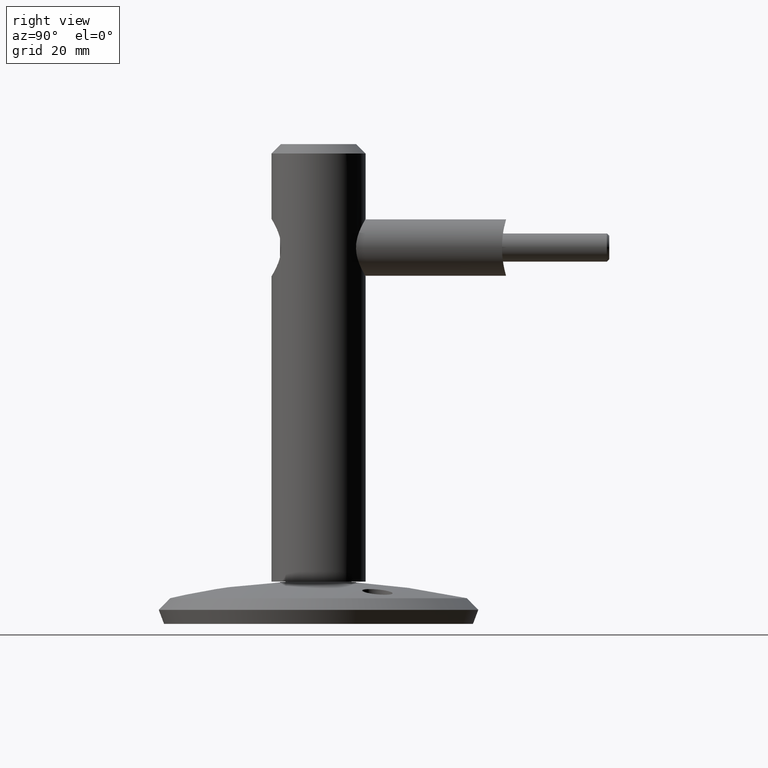
[diagram: clean part render]
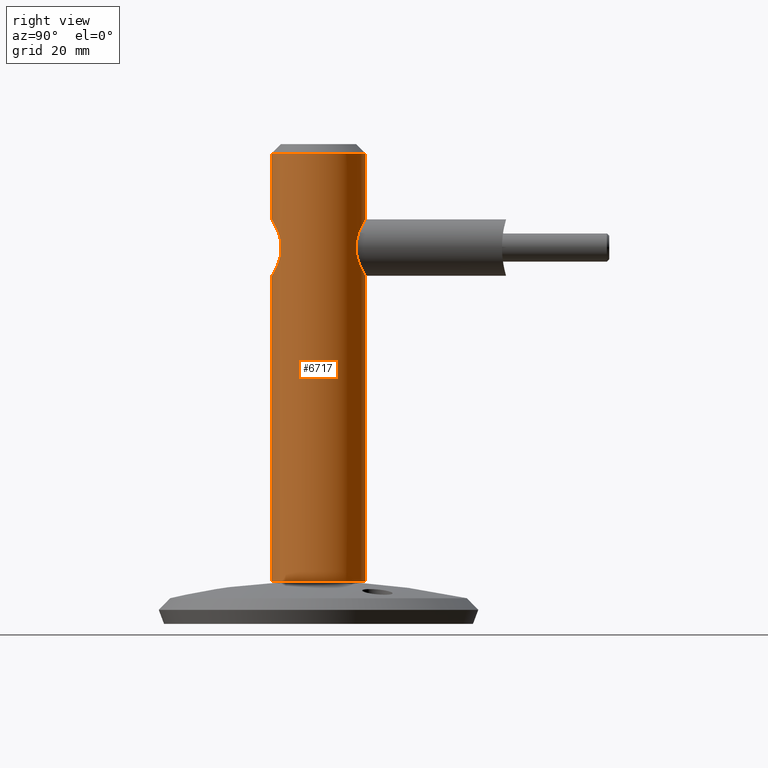
[diagram: same view with one face highlighted and labeled with its STEP entity id]
A machine part, right view. The second image highlights one B-rep face of the part: STEP entity #6717.
In plain terms, the highlighted cylindrical surface (bore or boss wall) has radius 10 mm, axis along (0, 0, -1).
Its self-contained STEP definition (entity closure, byte-faithful):
#7 = CARTESIAN_POINT ( 'NONE',  ( 1.998365452046211965, 9.800209597787416627, 67.28607461608849860 ) ) ;
#61 = CARTESIAN_POINT ( 'NONE',  ( 5.841261388612417171, 8.116948676576175359, 71.41188300842388514 ) ) ;
#113 = CARTESIAN_POINT ( 'NONE',  ( 5.723335566763983806, 8.202270060219536418, 74.99978095502808628 ) ) ;
#158 = CARTESIAN_POINT ( 'NONE',  ( 4.909814957030147475, 8.712593341359120558, 76.54027258561259828 ) ) ;
#213 = CARTESIAN_POINT ( 'NONE',  ( -2.700406874499809540, 9.630192781387989953, 67.58251216268854478 ) ) ;
#241 = CARTESIAN_POINT ( 'NONE',  ( -5.837839748310258869, -8.120521796587247820, 74.80471512202566942 ) ) ;
#262 = CARTESIAN_POINT ( 'NONE',  ( -2.721276964009261778, 9.624310243769510720, 78.40703245032062796 ) ) ;
#410 = CARTESIAN_POINT ( 'NONE',  ( -5.884434542536706836, 8.085540716229177249, 71.58006342005849376 ) ) ;
#425 = CARTESIAN_POINT ( 'NONE',  ( -4.446538712084784351, -8.960524276760841289, 68.80993671543376422 ) ) ;
#438 = FACE_OUTER_BOUND ( 'NONE', #12199, .T. ) ;
#468 = CARTESIAN_POINT ( 'NONE',  ( -2.297534510244960249, -9.734002362656280383, 67.34638428489988371 ) ) ;
#561 = CARTESIAN_POINT ( 'NONE',  ( -6.056865859714453570, -7.957033113640100908, 72.62734759611845448 ) ) ;
#564 = CARTESIAN_POINT ( 'NONE',  ( -3.388622946482748866, -9.413663049955651729, 67.91584318586376412 ) ) ;
#615 = CARTESIAN_POINT ( 'NONE',  ( 1.428396636353757243, -9.899032940316862650, 67.06684701675145277 ) ) ;
#767 = CARTESIAN_POINT ( 'NONE',  ( 0.000000000000000000, 9.999999999999994671, 79.04999999999999716 ) ) ;
#1124 = CARTESIAN_POINT ( 'NONE',  ( -3.047396157505281700, 9.526079306501973321, 67.76982329031935137 ) ) ;
#1176 = CARTESIAN_POINT ( 'NONE',  ( -0.7915533686703392080, 9.976606783706291282, 66.98840868809791971 ) ) ;
#1201 = CARTESIAN_POINT ( 'NONE',  ( 0.9211570255764327531, -9.959068560076266508, 79.03271996867415794 ) ) ;
#1222 = CARTESIAN_POINT ( 'NONE',  ( 4.809344956108930980, 8.771114513930168499, 69.30910062708608166 ) ) ;
#1246 = ORIENTED_EDGE ( 'NONE', *, *, #5495, .T. ) ;
#1270 = CARTESIAN_POINT ( 'NONE',  ( 5.723704609542327404, 8.200268042629451415, 71.02980819925292622 ) ) ;
#1322 = CARTESIAN_POINT ( 'NONE',  ( -0.3890383391220043618, 10.00080097688818981, 66.94867606658226578 ) ) ;
#1355 = CARTESIAN_POINT ( 'NONE',  ( 1.795197998037254328, -9.843530665727923790, 78.84083692242435859 ) ) ;
#1375 = CARTESIAN_POINT ( 'NONE',  ( -4.012941053971294636, 9.164525603032791068, 77.54422816727378631 ) ) ;
#1407 = CARTESIAN_POINT ( 'NONE',  ( -5.934188980011546377, -8.049358264991337109, 74.45896919993700180 ) ) ;
#1448 = DIRECTION ( 'NONE',  ( -0.000000000000000000, 1.224646799147353454E-16, -1.000000000000000000 ) ) ;
#1473 = CARTESIAN_POINT ( 'NONE',  ( -6.050767158601193962, 7.961671793519522922, 73.39503124586065042 ) ) ;
#1519 = CARTESIAN_POINT ( 'NONE',  ( -0.8200237460007523405, 9.968418496124131778, 78.99767829329726965 ) ) ;
#1623 = CARTESIAN_POINT ( 'NONE',  ( 0.000000000000000000, -1.138921523207038456E-14, 92.99999999999997158 ) ) ;
#1714 = CARTESIAN_POINT ( 'NONE',  ( -6.037779974283359330, -7.971665019287484277, 73.73679706541230416 ) ) ;
#1716 = CARTESIAN_POINT ( 'NONE',  ( 3.378959487670008421, -9.417227855021796046, 67.90923213048134244 ) ) ;
#1807 = CARTESIAN_POINT ( 'NONE',  ( -6.000000000000003553, -8.000000000000000000, 74.09999999999999432 ) ) ;
#2005 = EDGE_CURVE ( 'NONE', #4082, #2495, #8141, .T. ) ;
#2093 = CARTESIAN_POINT ( 'NONE',  ( 3.671158131099151234, -9.306209061055662701, 77.88391928570206346 ) ) ;
#2124 = CARTESIAN_POINT ( 'NONE',  ( 5.999999999999998224, -7.999999999999994671, 74.09999999999999432 ) ) ;
#2172 = CARTESIAN_POINT ( 'NONE',  ( 6.056865859714453570, -7.957033113640100908, 73.37265240388153131 ) ) ;
#2267 = CARTESIAN_POINT ( 'NONE',  ( -3.704131869670969746, 9.295077121072395698, 68.20050133596923558 ) ) ;
#2297 = CARTESIAN_POINT ( 'NONE',  ( 5.441551257161367339, -8.392413302372315087, 75.77878179143553439 ) ) ;
#2321 = CARTESIAN_POINT ( 'NONE',  ( -4.001911081900812128, 9.169300131686208388, 68.44628401559825193 ) ) ;
#2346 = CARTESIAN_POINT ( 'NONE',  ( 1.451031337417091782, -9.900546220189406554, 78.93577880338104080 ) ) ;
#2367 = CARTESIAN_POINT ( 'NONE',  ( 5.656157239157929340, 8.247197496379083503, 70.84383503933109694 ) ) ;
#2429 = CARTESIAN_POINT ( 'NONE',  ( 1.031890892895365397, 9.948577172678415792, 67.03529132864302653 ) ) ;
#2458 = CARTESIAN_POINT ( 'NONE',  ( -1.426697486787320335, -9.904185975676908171, 78.94183985685957339 ) ) ;
#2476 = CARTESIAN_POINT ( 'NONE',  ( 2.187526311942927126, 9.759632488150238316, 67.35579649458792062 ) ) ;
#2495 = VERTEX_POINT ( 'NONE', #2968 ) ;
#2507 = CARTESIAN_POINT ( 'NONE',  ( 0.1948999697912681406, -9.999771176961683494, 79.09962487980779144 ) ) ;
#2528 = CARTESIAN_POINT ( 'NONE',  ( -3.715753152631673384, 9.290303654958590229, 77.79021888254729333 ) ) ;
#2553 = CARTESIAN_POINT ( 'NONE',  ( 0.7422505231331634201, -9.974068257982132479, 79.05740985828462897 ) ) ;
#2576 = ORIENTED_EDGE ( 'NONE', *, *, #11455, .F. ) ;
#2589 = CARTESIAN_POINT ( 'NONE',  ( -5.441450482859748305, -8.392479583200314508, 70.22101568040768882 ) ) ;
#2670 = CARTESIAN_POINT ( 'NONE',  ( -5.228829627347694853, 8.527693242157809550, 69.93235471015313465 ) ) ;
#2674 = VERTEX_POINT ( 'NONE', #13162 ) ;
#2718 = CARTESIAN_POINT ( 'NONE',  ( -5.238367559401941875, 8.521839991123560054, 76.05152019169655375 ) ) ;
#2781 = CARTESIAN_POINT ( 'NONE',  ( 5.934164614573542273, -8.049376539069850622, 71.54089789767387231 ) ) ;
#2830 = CARTESIAN_POINT ( 'NONE',  ( 0.3582941676330972935, -10.00036476999719071, 66.89940201588593993 ) ) ;
#2968 = CARTESIAN_POINT ( 'NONE',  ( 5.999999999999998224, -7.999999999999994671, 71.89999999999999147 ) ) ;
#2974 = AXIS2_PLACEMENT_3D ( 'NONE', #1623, #13284, #10871 ) ;
#3080 = CARTESIAN_POINT ( 'NONE',  ( 0.000000000000000000, 9.999999999999987566, 2.000000000000003109 ) ) ;
#3232 = VERTEX_POINT ( 'NONE', #13556 ) ;
#3285 = EDGE_LOOP ( 'NONE', ( #14896 ) ) ;
#3438 = ORIENTED_EDGE ( 'NONE', *, *, #9306, .F. ) ;
#3470 = CARTESIAN_POINT ( 'NONE',  ( 0.3796504795269756150, -9.994440402912667665, 79.09089611992604318 ) ) ;
#3498 = CARTESIAN_POINT ( 'NONE',  ( 1.989546485206036053, 9.807272507366787906, 78.72721872434129864 ) ) ;
#3516 = AXIS2_PLACEMENT_3D ( 'NONE', #7237, #1448, #9461 ) ;
#3548 = CARTESIAN_POINT ( 'NONE',  ( 4.418210297287489929, 8.972289577052807275, 77.13749251846746802 ) ) ;
#3602 = CARTESIAN_POINT ( 'NONE',  ( 4.565946589780883080, 8.901855730817118229, 69.01201586447612613 ) ) ;
#3649 = CARTESIAN_POINT ( 'NONE',  ( -1.385888647051443101, 9.905509707784380780, 67.10740851855724998 ) ) ;
#3713 = CARTESIAN_POINT ( 'NONE',  ( -5.838391810910994906, -8.120074865877731085, 71.19808358073359500 ) ) ;
#3799 = CARTESIAN_POINT ( 'NONE',  ( -1.610858122069342757, 9.877370217451865386, 78.84543833821621206 ) ) ;
#3860 = CARTESIAN_POINT ( 'NONE',  ( 5.087585823358984349, -8.611548998309300984, 69.61679432716991300 ) ) ;
#3954 = CARTESIAN_POINT ( 'NONE',  ( -4.200266562725629704, -9.079687166741130966, 68.56289965064384262 ) ) ;
#4008 = CARTESIAN_POINT ( 'NONE',  ( 0.7199534913099313593, -9.980440437822629463, 66.93190657702997726 ) ) ;
#4082 = VERTEX_POINT ( 'NONE', #9763 ) ;
#4390 = CARTESIAN_POINT ( 'NONE',  ( 5.088629003495557690, -8.610977644085140881, 76.38200579442319338 ) ) ;
#4544 = CARTESIAN_POINT ( 'NONE',  ( 5.838416126948233753, -8.120056884658593432, 74.80182904152177059 ) ) ;
#4618 = CARTESIAN_POINT ( 'NONE',  ( 3.560486200296250736, 9.346224700484290437, 68.10480852304621635 ) ) ;
#4648 = CARTESIAN_POINT ( 'NONE',  ( -5.587556075877595951, -8.294725087350583337, 75.47317340628244153 ) ) ;
#4673 = CARTESIAN_POINT ( 'NONE',  ( 0.8332551134870846976, 9.967267669129022067, 67.00423402938130835 ) ) ;
#4697 = CARTESIAN_POINT ( 'NONE',  ( -1.780239559027245289, -9.846217158557561078, 78.84534435862262569 ) ) ;
#4716 = CARTESIAN_POINT ( 'NONE',  ( 5.891263864195191324, 8.080559783995731493, 71.60857743917435414 ) ) ;
#4771 = CARTESIAN_POINT ( 'NONE',  ( 4.010998319556139613, 9.165268267907354272, 77.54555813583371560 ) ) ;
#4823 = CARTESIAN_POINT ( 'NONE',  ( 5.417957029911526945, 8.407112808365997836, 75.72055793908356236 ) ) ;
#4854 = CARTESIAN_POINT ( 'NONE',  ( -0.3534483381996040285, -10.00043562208651693, 79.10071413546017993 ) ) ;
#4869 = B_SPLINE_CURVE_WITH_KNOTS ( 'NONE', 3,
 ( #12772, #5899, #13909, #10571, #3498, #7170, #8181, #10518, #4771, #3548, #11669, #7122, #158, #10469, #4823, #113, #8280, #8230, #12935, #11567, #10426, #12881, #7068, #4716, #61, #1270, #2367, #5951, #11612, #1222, #3602, #9342, #8128, #12829, #4618, #13958, #14059, #2476, #7, #9387, #9441, #2429, #4673, #5843, #10627, #1322, #1176, #3649, #11717, #14109, #9294, #6006, #213, #1124, #9249, #2267, #2321, #12719, #5793, #2670, #9688, #8492, #9489, #8439, #410, #13081, #7313, #9542, #7218, #1473, #13035, #14210, #10720, #13133, #2718, #14258, #11906, #1375, #2528, #14306, #13176, #262, #14350, #4873, #3799, #9588, #1519, #6160, #11950, #7261 ),
 .UNSPECIFIED., .T., .F.,
 ( 4, 2, 2, 2, 2, 2, 2, 2, 2, 2, 2, 2, 2, 2, 2, 2, 2, 2, 2, 2, 2, 2, 2, 2, 2, 2, 2, 2, 2, 2, 2, 2, 2, 2, 2, 2, 2, 2, 2, 2, 2, 2, 2, 2, 4 ),
 ( 0.000000000000000000, 0.001212504415231212360, 0.002425008830462424721, 0.003637513245693637515, 0.004850017660924849441, 0.005456269868540454537, 0.006062522076156059633, 0.007275026491387235998, 0.008487530906618412363, 0.009093783114234000112, 0.009700035321849589595, 0.01091253973708076509, 0.01151879194469633202, 0.01212504415231190069, 0.01333754856754299813, 0.01455005298277409730, 0.01515630519038966076, 0.01576255739800522249, 0.01697506181323634941, 0.01758131402085191461, 0.01818756622846747634, 0.01879381843608303806, 0.01940007064369860326, 0.02061257505892973019, 0.02121882726654528845, 0.02182507947416084323, 0.02243133168177640149, 0.02303758388939196322, 0.02425008830462310402, 0.02546259271985424483, 0.02667509713508537869, 0.02728134934270093001, 0.02788760155031648133, 0.02849385375793203265, 0.02910010596554758050, 0.03031261038077864498, 0.03152511479600970251, 0.03273761921124076352, 0.03395012362647183146, 0.03516262804170289247, 0.03576888024931842297, 0.03637513245693395347, 0.03758763687216501448, 0.03819388907978054498, 0.03880014128739607548 ),
 .UNSPECIFIED. ) ;
#4873 = CARTESIAN_POINT ( 'NONE',  ( -1.990632519648709797, 9.807126611579626285, 78.72698747118118945 ) ) ;
#5079 = CARTESIAN_POINT ( 'NONE',  ( -2.937877629007049407, -9.560011998416236167, 67.65124042108645597 ) ) ;
#5144 = FACE_BOUND ( 'NONE', #9273, .T. ) ;
#5181 = CARTESIAN_POINT ( 'NONE',  ( 4.886022504218142437, -8.728711895770643991, 69.33168015832910669 ) ) ;
#5230 = CARTESIAN_POINT ( 'NONE',  ( -0.3783742972851537045, -9.999625149710103855, 66.90061450919107244 ) ) ;
#5429 = EDGE_CURVE ( 'NONE', #11963, #4082, #11565, .T. ) ;
#5492 = CARTESIAN_POINT ( 'NONE',  ( 6.037620414525908252, -7.971784689105573918, 73.73833101489869080 ) ) ;
#5495 = EDGE_CURVE ( 'NONE', #3232, #3232, #6098, .T. ) ;
#5531 = B_SPLINE_CURVE_WITH_KNOTS ( 'NONE', 3,
 ( #9173, #13884, #4544, #9274, #2297, #4390, #5570, #13677, #6741, #2093, #11401, #12540, #8366, #5930, #7099, #1355, #2346, #1201, #2553, #3470, #2507, #4854, #8260, #2458, #4697, #10496, #11696, #8206, #9367, #5875, #8309, #12967, #11591, #9521, #4648, #241, #1407, #12750 ),
 .UNSPECIFIED., .F., .F.,
 ( 4, 2, 2, 2, 2, 2, 2, 2, 2, 2, 2, 2, 2, 2, 2, 2, 2, 2, 4 ),
 ( 0.000000000000000000, 0.001085741180294345952, 0.002171482360588691905, 0.003257223540883038074, 0.004342964721177383809, 0.005428705901471728677, 0.005971576491618911520, 0.006514447081766093495, 0.007600188262060472190, 0.008143058852207661971, 0.008685929442354850885, 0.009771670622649230448, 0.01085741180294360654, 0.01194315298323798437, 0.01302889416353236393, 0.01411463534382674176, 0.01520037652412111785, 0.01628611770441549395, 0.01737185888470987177 ),
 .UNSPECIFIED. ) ;
#5570 = CARTESIAN_POINT ( 'NONE',  ( 4.889642206010902825, -8.726630338559120403, 76.66329162099924588 ) ) ;
#5599 = CARTESIAN_POINT ( 'NONE',  ( 6.037779974283359330, -7.971665019287484277, 72.26320293458768163 ) ) ;
#5793 = CARTESIAN_POINT ( 'NONE',  ( -4.797193549068170526, 8.777764257312441032, 69.29351366535271950 ) ) ;
#5843 = CARTESIAN_POINT ( 'NONE',  ( 0.4303841950123528659, 9.992772804227090688, 66.96192968712142601 ) ) ;
#5875 = CARTESIAN_POINT ( 'NONE',  ( -4.193732425374428807, -9.082689412713653709, 77.44320250501623093 ) ) ;
#5899 = CARTESIAN_POINT ( 'NONE',  ( 0.4106071760690786498, 9.999999999999996447, 79.04999999999999716 ) ) ;
#5930 = CARTESIAN_POINT ( 'NONE',  ( 2.464040568568711453, -9.693086573961810615, 78.58299529135162231 ) ) ;
#5951 = CARTESIAN_POINT ( 'NONE',  ( 5.428246837937430236, 8.400456017375674378, 70.29976214506899623 ) ) ;
#6006 = CARTESIAN_POINT ( 'NONE',  ( -2.522322950849298362, 9.678494564125962540, 67.49730070340751809 ) ) ;
#6033 = EDGE_CURVE ( 'NONE', #2674, #11963, #5531, .T. ) ;
#6098 = CIRCLE ( 'NONE', #2974, 9.999999999999994671 ) ;
#6157 = B_SPLINE_CURVE_WITH_KNOTS ( 'NONE', 3,
 ( #6823, #5599, #7827, #2172, #5492, #2124 ),
 .UNSPECIFIED., .F., .F.,
 ( 4, 2, 4 ),
 ( 0.002051106008994781071, 0.003147755811804922674, 0.004244405614615064277 ),
 .UNSPECIFIED. ) ;
#6160 = CARTESIAN_POINT ( 'NONE',  ( -0.4118686321757398794, 9.993606480530660363, 79.03944931957575193 ) ) ;
#6311 = CARTESIAN_POINT ( 'NONE',  ( -6.057055091978226002, -7.956889067146800443, 73.36719545397994580 ) ) ;
#6368 = CARTESIAN_POINT ( 'NONE',  ( 5.836243151480579705, -8.121650679453958688, 71.19065087292362648 ) ) ;
#6416 = CARTESIAN_POINT ( 'NONE',  ( 1.252507757878328132, -9.922857723816173703, 67.02724962673477194 ) ) ;
#6717 = ADVANCED_FACE ( 'NONE', ( #438, #5144, #10612, #14767 ), #14404, .T. ) ;
#6741 = CARTESIAN_POINT ( 'NONE',  ( 4.200619666270370089, -9.079522208296680219, 77.43676278745333263 ) ) ;
#6823 = CARTESIAN_POINT ( 'NONE',  ( 5.999999999999998224, -7.999999999999994671, 71.89999999999999147 ) ) ;
#6905 = VERTEX_POINT ( 'NONE', #3080 ) ;
#7068 = CARTESIAN_POINT ( 'NONE',  ( 6.010485593414461647, 7.992734719266154642, 72.20078189913897404 ) ) ;
#7099 = CARTESIAN_POINT ( 'NONE',  ( 2.298275237033496232, -9.733827042312775291, 78.65331397380921885 ) ) ;
#7122 = CARTESIAN_POINT ( 'NONE',  ( 4.793319077538551909, 8.777437711909792384, 76.69648183097920935 ) ) ;
#7170 = CARTESIAN_POINT ( 'NONE',  ( 2.719148640868350064, 9.630530614634476905, 78.41899992637985406 ) ) ;
#7183 = CARTESIAN_POINT ( 'NONE',  ( -5.934189979442122898, -8.049357515418400055, 71.54103625150249002 ) ) ;
#7218 = CARTESIAN_POINT ( 'NONE',  ( -6.049599798639600401, 7.962558791941963143, 72.78511514827020790 ) ) ;
#7237 = CARTESIAN_POINT ( 'NONE',  ( 0.000000000000000000, -2.449293598294708880E-16, 2.000000000000001776 ) ) ;
#7261 = CARTESIAN_POINT ( 'NONE',  ( 0.000000000000000000, 9.999999999999994671, 79.05000000000003979 ) ) ;
#7313 = CARTESIAN_POINT ( 'NONE',  ( -5.996686527489474727, 8.002527491817533090, 72.17297004582711395 ) ) ;
#7340 = CARTESIAN_POINT ( 'NONE',  ( 0.000000000000000000, 0.000000000000000000, 0.000000000000000000 ) ) ;
#7471 = CARTESIAN_POINT ( 'NONE',  ( 5.999999999999998224, -7.999999999999994671, 71.89999999999999147 ) ) ;
#7827 = CARTESIAN_POINT ( 'NONE',  ( 6.057055091978226002, -7.956889067146800443, 72.63280454602005420 ) ) ;
#8128 = CARTESIAN_POINT ( 'NONE',  ( 4.013375884811680727, 9.160729723725442142, 68.46867626389476413 ) ) ;
#8141 = B_SPLINE_CURVE_WITH_KNOTS ( 'NONE', 3,
 ( #12951, #7183, #3713, #14072, #2589, #9451, #10682, #425, #3954, #10970, #564, #5079, #13145, #8548, #468, #13190, #14363, #8599, #5230, #2830, #4008, #6416, #615, #12054, #13240, #12102, #14464, #1716, #11015, #13289, #8744, #5181, #3860, #14517, #9748, #6368, #2781, #7471 ),
 .UNSPECIFIED., .F., .F.,
 ( 4, 2, 2, 2, 2, 2, 2, 2, 2, 2, 2, 2, 2, 2, 2, 2, 2, 2, 4 ),
 ( 0.000000000000000000, 0.001085879453529003513, 0.002171758907058007025, 0.003257638360587010538, 0.004343517814116014050, 0.005429397267645017129, 0.005972336994409507827, 0.006515276721173998524, 0.007601156174702966908, 0.008687035628231934425, 0.009772915081760901942, 0.01031585480852538657, 0.01085879453528986946, 0.01194467398881882310, 0.01303055344234777500, 0.01411643289587673038, 0.01520231234940568402, 0.01628819180293463592, 0.01737407125646358783 ),
 .UNSPECIFIED. ) ;
#8181 = CARTESIAN_POINT ( 'NONE',  ( 3.063299783018800237, 9.525518476877179452, 78.23187995015200613 ) ) ;
#8206 = CARTESIAN_POINT ( 'NONE',  ( -3.379864816753686441, -9.416979440714962735, 78.09033624556725783 ) ) ;
#8230 = CARTESIAN_POINT ( 'NONE',  ( 5.966149205179495318, 8.025433811993513800, 74.02363573558832854 ) ) ;
#8260 = CARTESIAN_POINT ( 'NONE',  ( -0.7142521268785950728, -9.980892217575036085, 79.06883600887518071 ) ) ;
#8280 = CARTESIAN_POINT ( 'NONE',  ( 5.844737505849151304, 8.114748321687592636, 74.61326046200534279 ) ) ;
#8309 = CARTESIAN_POINT ( 'NONE',  ( -4.439510838769654910, -8.964072158352644593, 77.19773166068310388 ) ) ;
#8366 = CARTESIAN_POINT ( 'NONE',  ( 2.783635891053757749, -9.606185219945970744, 78.43071851349748158 ) ) ;
#8439 = CARTESIAN_POINT ( 'NONE',  ( -5.834332309922785065, 8.121937734524035335, 71.38666374264990111 ) ) ;
#8492 = CARTESIAN_POINT ( 'NONE',  ( -5.646064958941527046, 8.254125389464242346, 70.81746519423634822 ) ) ;
#8517 = DIRECTION ( 'NONE',  ( 0.000000000000000000, 1.000000000000000000, 1.224646799147353454E-16 ) ) ;
#8548 = CARTESIAN_POINT ( 'NONE',  ( -2.463334703295336325, -9.693266534806898704, 67.41669235307566055 ) ) ;
#8599 = CARTESIAN_POINT ( 'NONE',  ( -0.7435261967601978217, -9.978653084490675340, 66.93483981501479718 ) ) ;
#8742 = CARTESIAN_POINT ( 'NONE',  ( -6.000000000000003553, -8.000000000000000000, 74.09999999999999432 ) ) ;
#8744 = CARTESIAN_POINT ( 'NONE',  ( 4.439734923441029046, -8.963948966871249979, 68.80255551768688349 ) ) ;
#8887 = CIRCLE ( 'NONE', #3516, 9.999999999999987566 ) ;
#9173 = CARTESIAN_POINT ( 'NONE',  ( 5.999999999999998224, -7.999999999999994671, 74.09999999999999432 ) ) ;
#9249 = CARTESIAN_POINT ( 'NONE',  ( -3.217023061501482761, 9.469980228090044250, 67.87246816633441426 ) ) ;
#9273 = EDGE_LOOP ( 'NONE', ( #2576, #11175, #9916, #11031 ) ) ;
#9274 = CARTESIAN_POINT ( 'NONE',  ( 5.592648036176224302, -8.291243249655318337, 75.46088982072230067 ) ) ;
#9294 = CARTESIAN_POINT ( 'NONE',  ( -2.156622285839805642, 9.766491202699974394, 67.34395960646322976 ) ) ;
#9306 = EDGE_CURVE ( 'NONE', #13968, #13968, #4869, .T. ) ;
#9342 = CARTESIAN_POINT ( 'NONE',  ( 4.157502293237213209, 9.096037632396891226, 68.60056581897079298 ) ) ;
#9367 = CARTESIAN_POINT ( 'NONE',  ( -3.665039092217796224, -9.308605001608615481, 77.88844848686520095 ) ) ;
#9387 = CARTESIAN_POINT ( 'NONE',  ( 1.617079106803187338, 9.870290157986087110, 67.16669365323743079 ) ) ;
#9441 = CARTESIAN_POINT ( 'NONE',  ( 1.423803182626798058, 9.900089447713101620, 67.11652034539567069 ) ) ;
#9451 = CARTESIAN_POINT ( 'NONE',  ( -5.088460093057086020, -8.611078375744481761, 69.61773580462437394 ) ) ;
#9461 = DIRECTION ( 'NONE',  ( 0.000000000000000000, 1.000000000000000000, 1.301042606982607046E-16 ) ) ;
#9489 = CARTESIAN_POINT ( 'NONE',  ( -5.715394619278814758, 8.206069120596847455, 71.00587068428144732 ) ) ;
#9521 = CARTESIAN_POINT ( 'NONE',  ( -5.435521209515218111, -8.396278779873650677, 75.79011042027555334 ) ) ;
#9542 = CARTESIAN_POINT ( 'NONE',  ( -6.038813889019886361, 7.970785556019542639, 72.57934019938487324 ) ) ;
#9588 = CARTESIAN_POINT ( 'NONE',  ( -1.020353760614823857, 9.949784157393036566, 78.96672075071639085 ) ) ;
#9666 = EDGE_LOOP ( 'NONE', ( #3438 ) ) ;
#9688 = CARTESIAN_POINT ( 'NONE',  ( -5.414512419855086911, 8.409375548611089712, 70.27207293882996453 ) ) ;
#9748 = CARTESIAN_POINT ( 'NONE',  ( 5.587580929126514384, -8.294690063091001875, 70.52726512797717362 ) ) ;
#9763 = CARTESIAN_POINT ( 'NONE',  ( -5.999999999999998224, -7.999999999999994671, 71.89999999999999147 ) ) ;
#9916 = ORIENTED_EDGE ( 'NONE', *, *, #5429, .F. ) ;
#10426 = CARTESIAN_POINT ( 'NONE',  ( 6.049576046310323640, 7.962576839647686811, 73.21692733757053873 ) ) ;
#10469 = CARTESIAN_POINT ( 'NONE',  ( 5.233572917041773742, 8.524786044159496257, 76.05965130249761330 ) ) ;
#10496 = CARTESIAN_POINT ( 'NONE',  ( -2.449570714503639390, -9.701383846423407675, 78.59793773393859340 ) ) ;
#10518 = CARTESIAN_POINT ( 'NONE',  ( 3.713255989063997120, 9.291449713239149588, 77.79250491216504315 ) ) ;
#10571 = CARTESIAN_POINT ( 'NONE',  ( 1.600291756954871580, 9.879093897290953663, 78.84834414336863517 ) ) ;
#10612 = FACE_BOUND ( 'NONE', #9666, .T. ) ;
#10627 = CARTESIAN_POINT ( 'NONE',  ( 0.2246254551471698613, 9.999569298577736021, 66.95071190560285856 ) ) ;
#10682 = CARTESIAN_POINT ( 'NONE',  ( -4.889433926875033087, -8.726748404028413120, 69.33642623638316138 ) ) ;
#10720 = CARTESIAN_POINT ( 'NONE',  ( -5.731835788411090427, 8.196332208454595758, 74.97590915381316279 ) ) ;
#10871 = DIRECTION ( 'NONE',  ( 0.000000000000000000, -1.000000000000000000, 0.000000000000000000 ) ) ;
#10970 = CARTESIAN_POINT ( 'NONE',  ( -3.670702060408908007, -9.306390526275178487, 68.11573494864198608 ) ) ;
#11015 = CARTESIAN_POINT ( 'NONE',  ( 3.667362574253418384, -9.307696626781806870, 68.11326752534363038 ) ) ;
#11031 = ORIENTED_EDGE ( 'NONE', *, *, #6033, .F. ) ;
#11062 = CARTESIAN_POINT ( 'NONE',  ( -5.999999999999998224, -7.999999999999994671, 71.89999999999999147 ) ) ;
#11175 = ORIENTED_EDGE ( 'NONE', *, *, #2005, .F. ) ;
#11401 = CARTESIAN_POINT ( 'NONE',  ( 3.389134987112404573, -9.413476739159973405, 78.08381210833329078 ) ) ;
#11455 = EDGE_CURVE ( 'NONE', #2495, #2674, #6157, .T. ) ;
#11565 = B_SPLINE_CURVE_WITH_KNOTS ( 'NONE', 3,
 ( #8742, #1714, #6311, #561, #14513, #11062 ),
 .UNSPECIFIED., .F., .F.,
 ( 4, 2, 4 ),
 ( 0.002051106008994781071, 0.003147755811804922674, 0.004244405614615064277 ),
 .UNSPECIFIED. ) ;
#11567 = CARTESIAN_POINT ( 'NONE',  ( 6.038658215534590923, 7.970902652852869252, 73.42200820212458723 ) ) ;
#11591 = CARTESIAN_POINT ( 'NONE',  ( -5.085329937527996336, -8.612886136187324126, 76.38659510465916469 ) ) ;
#11612 = CARTESIAN_POINT ( 'NONE',  ( 5.240762139977924505, 8.520367416696354113, 69.95255036464902787 ) ) ;
#11669 = CARTESIAN_POINT ( 'NONE',  ( 4.547504352662945948, 8.907273697830483172, 76.99500811868583128 ) ) ;
#11696 = CARTESIAN_POINT ( 'NONE',  ( -2.769117626186873959, -9.614310975765185674, 78.44674185589940407 ) ) ;
#11717 = CARTESIAN_POINT ( 'NONE',  ( -1.583593876613120788, 9.875756995747909883, 67.15745179331831594 ) ) ;
#11906 = CARTESIAN_POINT ( 'NONE',  ( -4.561661452718528409, 8.904126583897690850, 76.99311286212579830 ) ) ;
#11950 = CARTESIAN_POINT ( 'NONE',  ( -0.2053035880345130404, 9.999999999999994671, 79.05000000000003979 ) ) ;
#11963 = VERTEX_POINT ( 'NONE', #1807 ) ;
#12054 = CARTESIAN_POINT ( 'NONE',  ( 1.776933515782818107, -9.842442653361651139, 67.16175295539274259 ) ) ;
#12102 = CARTESIAN_POINT ( 'NONE',  ( 2.453783093869387866, -9.700362043440991400, 67.40382393132890115 ) ) ;
#12199 = EDGE_LOOP ( 'NONE', ( #1246 ) ) ;
#12540 = CARTESIAN_POINT ( 'NONE',  ( 2.938482526921272431, -9.559825600337708451, 78.34842648050849334 ) ) ;
#12701 = EDGE_CURVE ( 'NONE', #6905, #6905, #8887, .T. ) ;
#12719 = CARTESIAN_POINT ( 'NONE',  ( -4.548390479719960133, 8.910864226121621101, 68.99203722347262158 ) ) ;
#12750 = CARTESIAN_POINT ( 'NONE',  ( -6.000000000000003553, -8.000000000000000000, 74.09999999999999432 ) ) ;
#12772 = CARTESIAN_POINT ( 'NONE',  ( 0.000000000000000000, 9.999999999999994671, 79.05000000000003979 ) ) ;
#12829 = CARTESIAN_POINT ( 'NONE',  ( 3.715050206891281181, 9.285717905698605890, 68.22103748137148216 ) ) ;
#12881 = CARTESIAN_POINT ( 'NONE',  ( 6.050811216669968573, 7.961638316939755988, 72.60264013825089080 ) ) ;
#12935 = CARTESIAN_POINT ( 'NONE',  ( 5.996939449276152523, 8.002337120305279328, 73.82474311662434729 ) ) ;
#12951 = CARTESIAN_POINT ( 'NONE',  ( -5.999999999999998224, -7.999999999999994671, 71.89999999999999147 ) ) ;
#12967 = CARTESIAN_POINT ( 'NONE',  ( -4.886561180954148043, -8.728422880022383978, 76.66765966352474493 ) ) ;
#13035 = CARTESIAN_POINT ( 'NONE',  ( -6.010966989649698888, 7.992385708557909751, 73.79745518853171404 ) ) ;
#13081 = CARTESIAN_POINT ( 'NONE',  ( -5.965610287277038459, 8.025835312260863219, 71.97321683068446418 ) ) ;
#13133 = CARTESIAN_POINT ( 'NONE',  ( -5.426674227204483003, 8.401488559086120134, 75.70358379215943501 ) ) ;
#13145 = CARTESIAN_POINT ( 'NONE',  ( -2.782998542782971541, -9.606370442895396877, 67.56895394500001828 ) ) ;
#13162 = CARTESIAN_POINT ( 'NONE',  ( 5.999999999999998224, -7.999999999999994671, 74.09999999999999432 ) ) ;
#13176 = CARTESIAN_POINT ( 'NONE',  ( -3.067438431860131320, 9.519638514666496576, 78.21844514203370125 ) ) ;
#13190 = CARTESIAN_POINT ( 'NONE',  ( -1.794372928924006239, -9.843682902237485877, 67.15890697633395234 ) ) ;
#13240 = CARTESIAN_POINT ( 'NONE',  ( 1.950045011591378996, -9.809528187643127950, 67.21732034705368619 ) ) ;
#13284 = DIRECTION ( 'NONE',  ( -0.000000000000000000, 1.224646799147347784E-16, -1.000000000000000000 ) ) ;
#13289 = CARTESIAN_POINT ( 'NONE',  ( 4.196397849105536260, -9.081465181305409473, 68.55928523524440266 ) ) ;
#13498 = AXIS2_PLACEMENT_3D ( 'NONE', #7340, #14238, #8517 ) ;
#13556 = CARTESIAN_POINT ( 'NONE',  ( 0.000000000000000000, -10.00000000000000711, 92.99999999999997158 ) ) ;
#13677 = CARTESIAN_POINT ( 'NONE',  ( 4.446837987864029174, -8.960374427352530091, 77.18974203418018476 ) ) ;
#13884 = CARTESIAN_POINT ( 'NONE',  ( 5.934198359529233358, -8.049351230353069653, 74.45891803893147198 ) ) ;
#13909 = CARTESIAN_POINT ( 'NONE',  ( 0.8125388926208286788, 9.974828844990154764, 79.00864739143764837 ) ) ;
#13958 = CARTESIAN_POINT ( 'NONE',  ( 3.080228708852363884, 9.519879392037124077, 67.77845449935313127 ) ) ;
#13968 = VERTEX_POINT ( 'NONE', #767 ) ;
#14059 = CARTESIAN_POINT ( 'NONE',  ( 2.738177472845332083, 9.625236350552851761, 67.59036947370746873 ) ) ;
#14072 = CARTESIAN_POINT ( 'NONE',  ( -5.592578451065074674, -8.291290673583597837, 70.53894575670972245 ) ) ;
#14109 = CARTESIAN_POINT ( 'NONE',  ( -1.969007427972393698, 9.806189655197371735, 67.27582767013122123 ) ) ;
#14210 = CARTESIAN_POINT ( 'NONE',  ( -5.850311026533844050, 8.110722184727789497, 74.59421448406133948 ) ) ;
#14238 = DIRECTION ( 'NONE',  ( -0.000000000000000000, 1.224646799147353454E-16, -1.000000000000000000 ) ) ;
#14258 = CARTESIAN_POINT ( 'NONE',  ( -4.806870086970118194, 8.772471230428703137, 76.69408583207246011 ) ) ;
#14306 = CARTESIAN_POINT ( 'NONE',  ( -3.234041929397700077, 9.464148861469514173, 78.11674724873122955 ) ) ;
#14350 = CARTESIAN_POINT ( 'NONE',  ( -2.540623517346209947, 9.673717987106419613, 78.49430231912521094 ) ) ;
#14363 = CARTESIAN_POINT ( 'NONE',  ( -1.450147870228891245, -9.900677741465713666, 67.06400215386923946 ) ) ;
#14404 = CYLINDRICAL_SURFACE ( 'NONE', #13498, 9.999999999999994671 ) ;
#14464 = CARTESIAN_POINT ( 'NONE',  ( 2.772523697984508040, -9.613254393639431683, 67.55514949105553058 ) ) ;
#14513 = CARTESIAN_POINT ( 'NONE',  ( -6.037620414525908252, -7.971784689105573918, 72.26166898510129499 ) ) ;
#14517 = CARTESIAN_POINT ( 'NONE',  ( 5.437383697977240082, -8.395067848522522524, 70.21352038304881660 ) ) ;
#14767 = FACE_OUTER_BOUND ( 'NONE', #3285, .T. ) ;
#14896 = ORIENTED_EDGE ( 'NONE', *, *, #12701, .F. ) ;